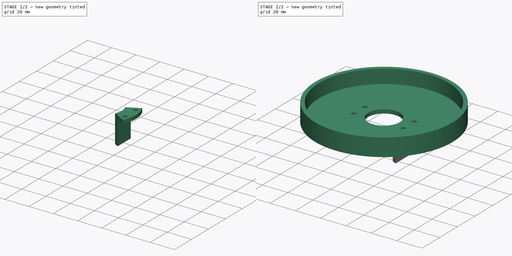
[diagram: build sequence overview — one tinted view per stage of 2, left to right]
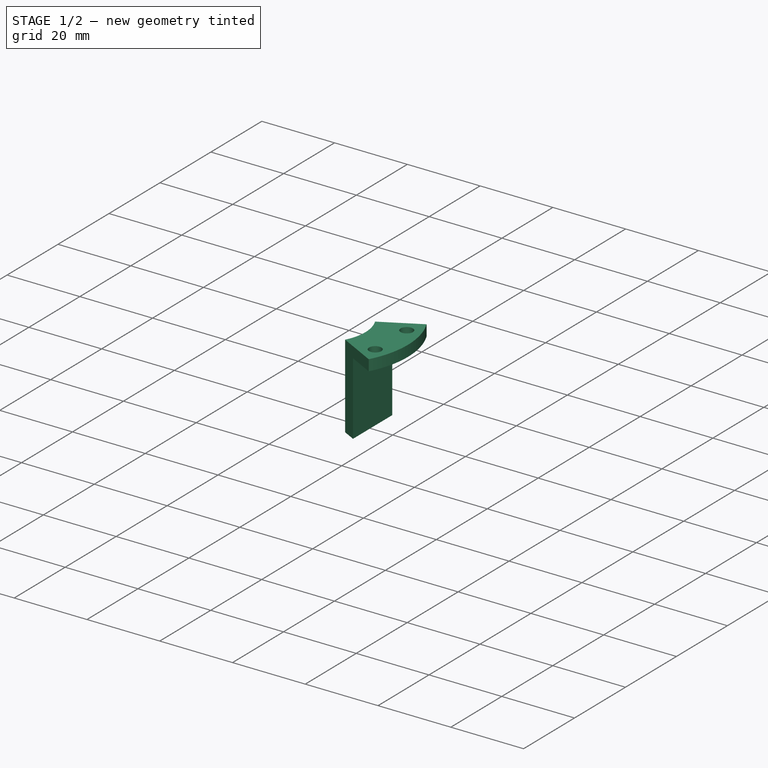
[diagram: stage 1 of 2 — iso view after this stage's code; geometry added in this stage tinted green]
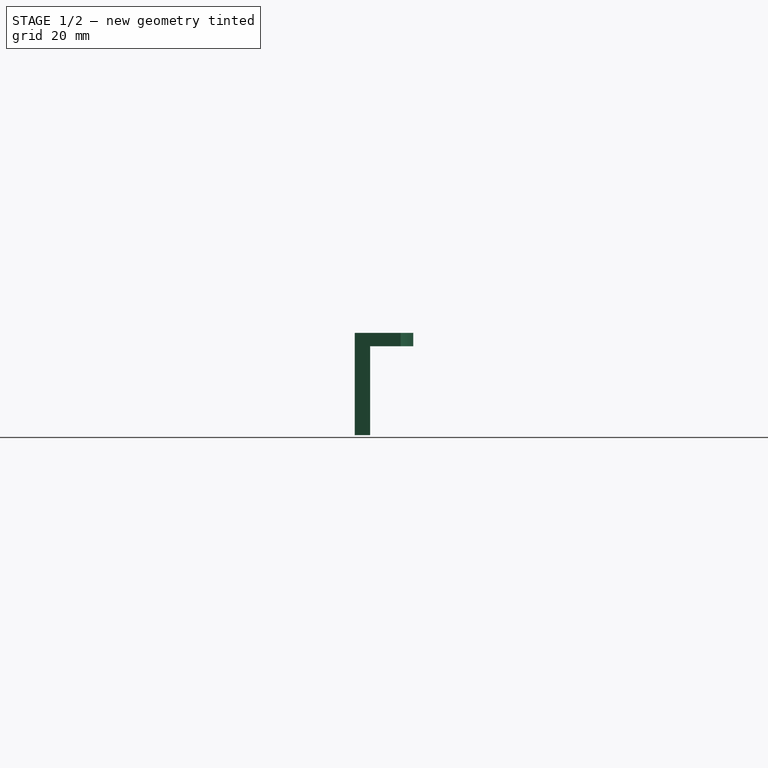
[diagram: stage 1 of 2 — front view after this stage's code; geometry added in this stage tinted green]
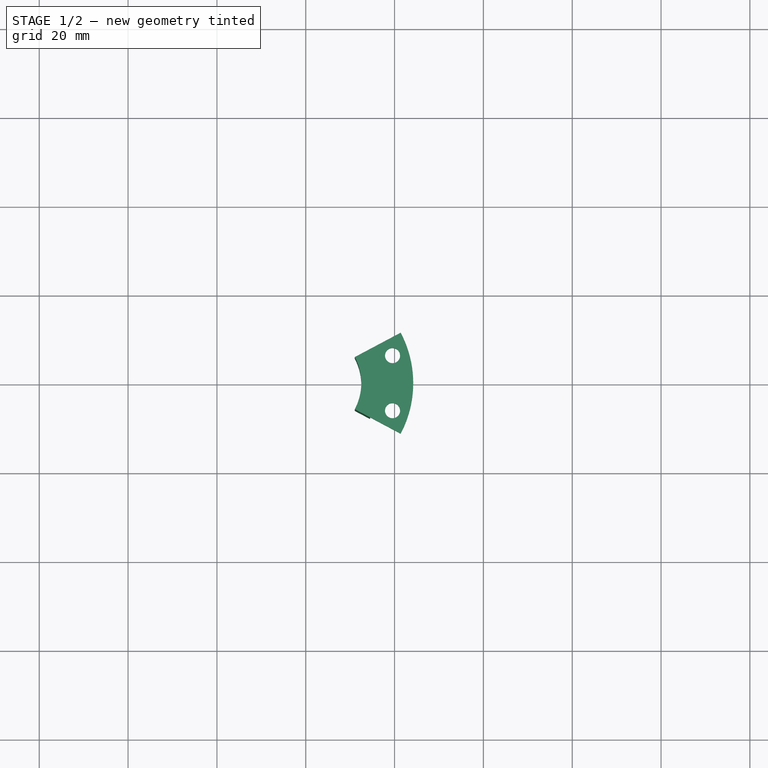
[diagram: stage 1 of 2 — top view after this stage's code; geometry added in this stage tinted green]
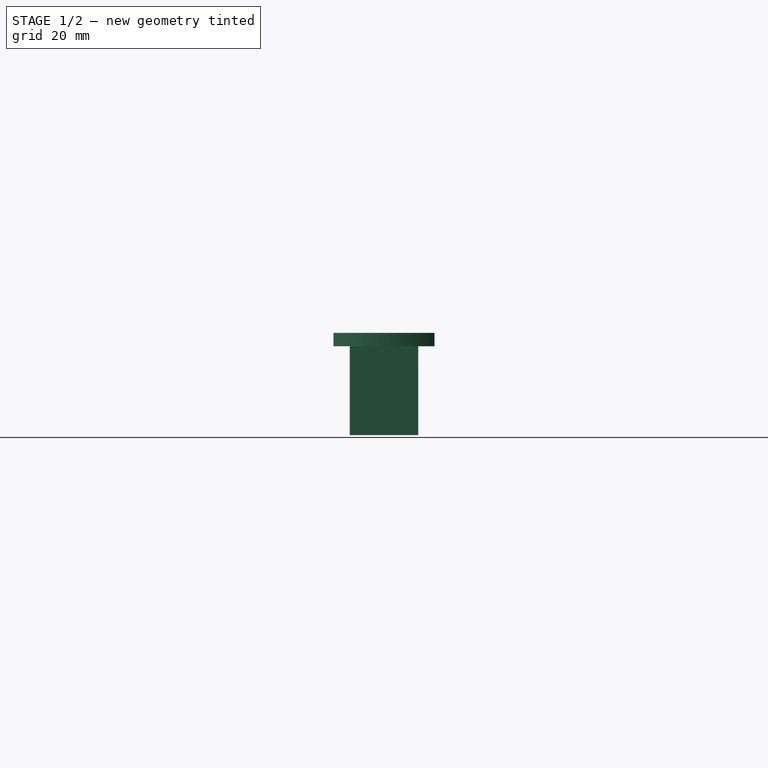
[diagram: stage 1 of 2 — right view after this stage's code; geometry added in this stage tinted green]
FCSTD DOCUMENT  (FreeCAD 0.18.4R)
Label: 16
License: All rights reserved
LicenseURL: http://en.wikipedia.org/wiki/All_rights_reserved
objects: Sketcher::SketchObject×5, PartDesign::Pocket×2, PartDesign::Body×2, PartDesign::Pad×2, PartDesign::Revolution×1, PartDesign::ShapeBinder×1
note: 18 computed .brp shape members not serialized (recipe doc carries the construction recipe); baked Part::Feature solids carry a one-line shape summary decoded from their .brp

FEATURE [PartDesign::Body] Body
  Group = -> [Sketch,Revolution,Sketch001,Pocket]
  Origin = -> Origin
  Tip = -> Pocket
FEATURE [PartDesign::ShapeBinder] ShapeBinder  label="Unnamed"
  TraceSupport = false
FEATURE [PartDesign::Pad] Pad  label="Unnamed"
  Length = 100
  Length2 = 100
  Type = 0
FEATURE [Sketcher::SketchObject] Sketch002  label="Sketch003"
  MapMode = 5
  Placement = pos=(0,0,-3) rot=(1,0,0;3.14159rad)
  Support = -> [Pad]
FEATURE [Sketcher::SketchObject] Sketch003  label="Unnamed"
FEATURE [PartDesign::Pad] Pad001
  BaseFeature = -> Pad
  Length = 20
  Length2 = 100
  Profile = -> Sketch003
  Type = 0
FEATURE [Sketcher::SketchObject] Sketch004  label="Unnamed"
  constraints (2):
    c: PointOnObject(g0,g-2)
    c: Diameter(g0) = 8.4
FEATURE [PartDesign::Pocket] Pocket001  label="Unnamed"
  Length = 100
  Length2 = 100
  Type = 0
FEATURE [PartDesign::Body] Body001
  Group = -> [Sketch002,ShapeBinder,Pad,Sketch003,Pad001,Sketch004,Pocket001]
  Origin = -> Origin001
  Tip = -> Pocket001
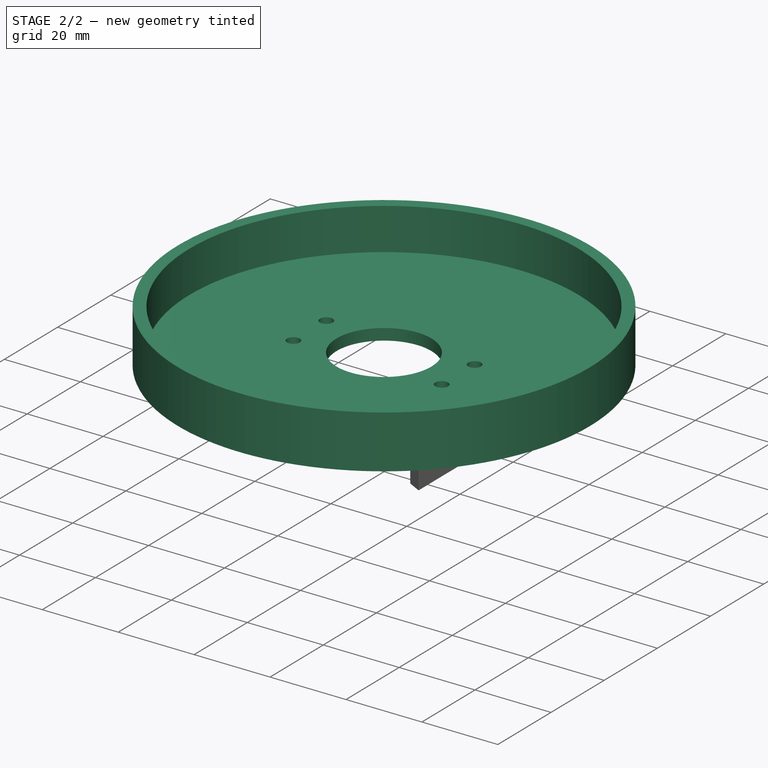
[diagram: stage 2 of 2 — iso view after this stage's code; geometry added in this stage tinted green]
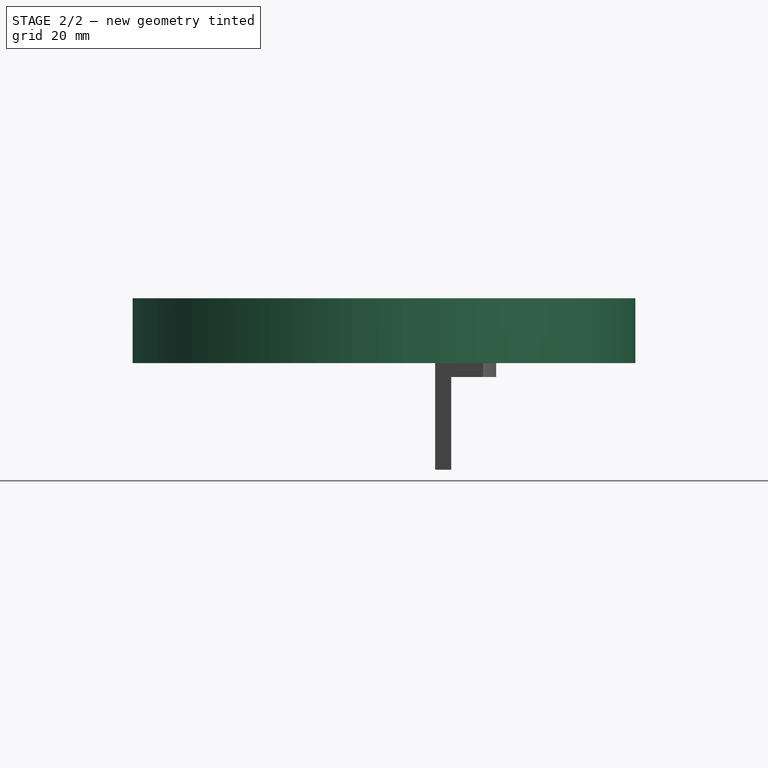
[diagram: stage 2 of 2 — front view after this stage's code; geometry added in this stage tinted green]
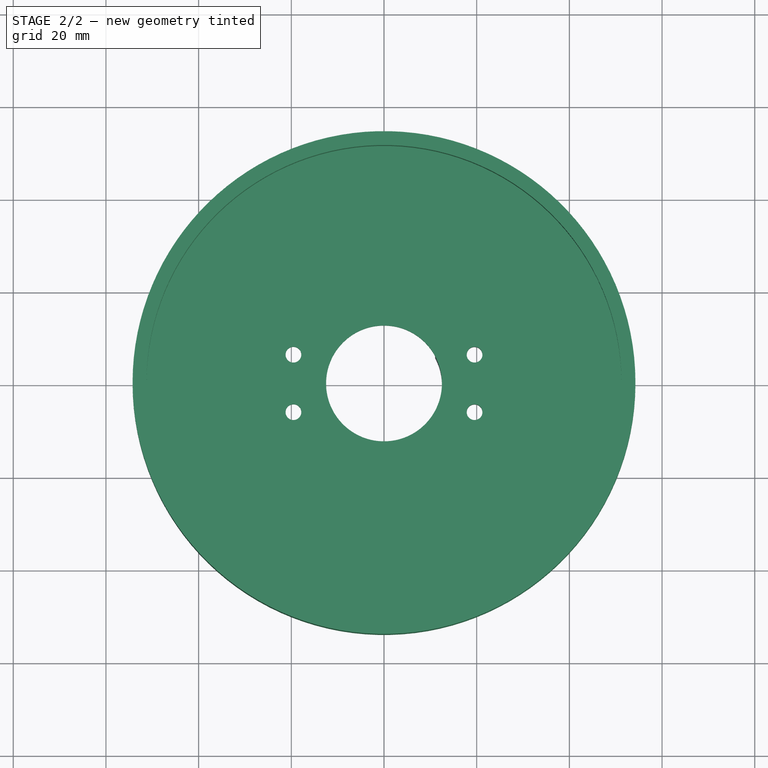
[diagram: stage 2 of 2 — top view after this stage's code; geometry added in this stage tinted green]
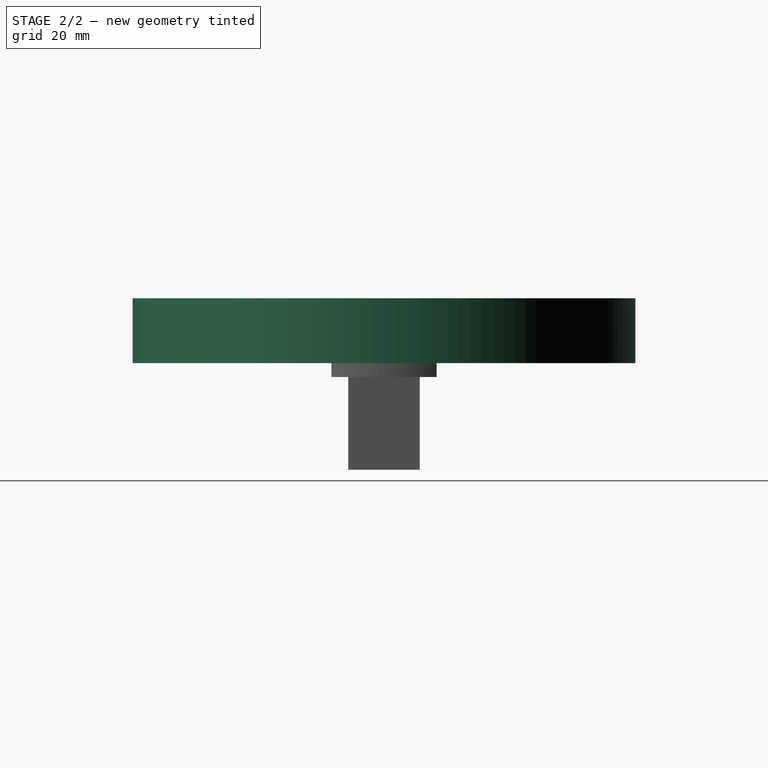
[diagram: stage 2 of 2 — right view after this stage's code; geometry added in this stage tinted green]
FEATURE [PartDesign::Revolution] Revolution  label="Unnamed"
  Angle = 360
  Axis = (0,1,0)
  Base = (0,0,0)
FEATURE [Sketcher::SketchObject] Sketch  label="Sketch001"
  MapMode = 5
  Placement = pos=(0,2e-15,3) rot=(0,0,1;3.14159rad)
  Support = -> [Revolution]
  sketch-geometry (6):
    g0: LineSegment StartX=12.5 StartY=3 StartZ=0 EndX=51.25 EndY=3 EndZ=0
    g1: LineSegment StartX=51.25 StartY=14 StartZ=0 EndX=54.25 EndY=14 EndZ=0
    g2: LineSegment StartX=54.25 StartY=0 StartZ=0 EndX=12.5 EndY=0 EndZ=0
    g3: Circle CenterX=19.54 CenterY=-6.19979 CenterZ=0 NormalX=0 NormalY=0 NormalZ=1 AngleXU=0 Radius=1.7
    g4: Circle CenterX=-19.54 CenterY=6.19979 CenterZ=0 NormalX=0 NormalY=0 NormalZ=1 AngleXU=0 Radius=1.7
    g5: LineSegment StartX=0 StartY=0 StartZ=0 EndX=-19.54 EndY=6.19979 EndZ=0
  constraints (18):
    c: PointOnObject(g0,g-1)
    c: Vertical(g0)
    c: Coincident(g0,g1)
    c: Horizontal(g1)
    c: Coincident(g1,g2)
    c: Vertical(g2)
    c: Coincident(g2,g3)
    c: Horizontal(g3)
    c: Coincident(g3,g4)
    c: Vertical(g4)
    c: PointOnObject(g5,g-1)
    c: Coincident(g5,g0)
    c: Coincident(g4,g5)
    c: Distance(g2,g-2) = 51.25
    c: Distance(g0,g-2) = 12.5
    c: Distance(g0) = 3
    c: Distance(g4) = 14
    c: Distance(g3) = 3
FEATURE [Sketcher::SketchObject] Sketch001  label="Unnamed"
FEATURE [PartDesign::Pocket] Pocket
  BaseFeature = -> Revolution
  Length = 5
  Length2 = 100
  Placement = pos=(0,0,0) rot=(1,0,0;1.5708rad)
  Profile = -> Sketch001
  Type = 0
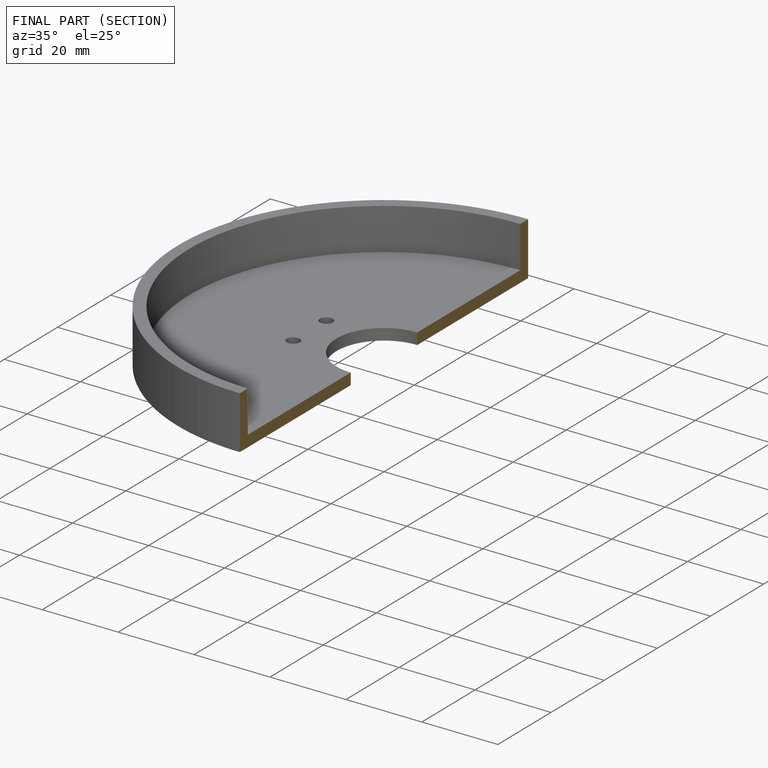
[diagram: finished part — half-section view (interior)]
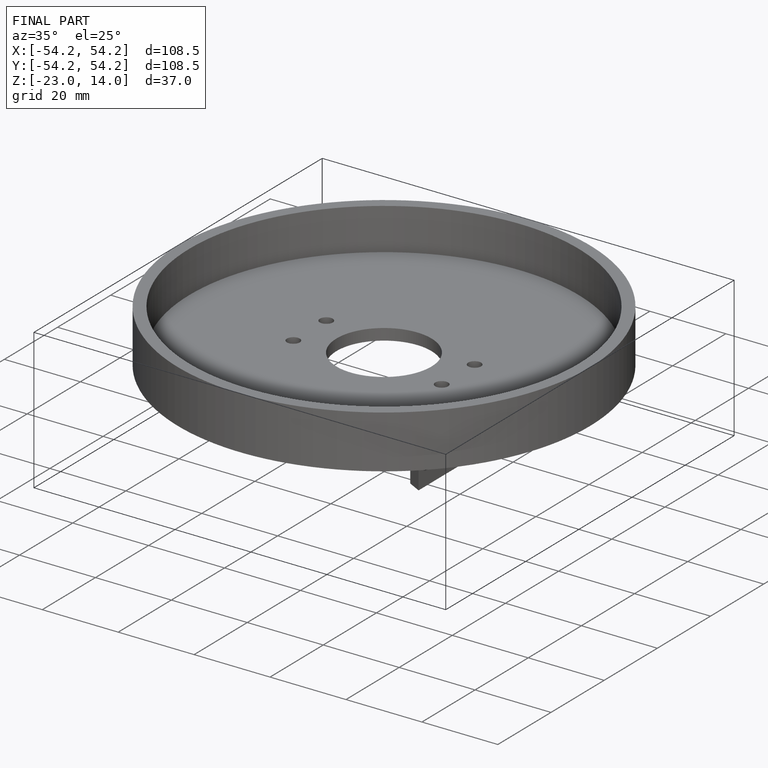
[diagram: finished part — iso view with bounding-box wireframe]
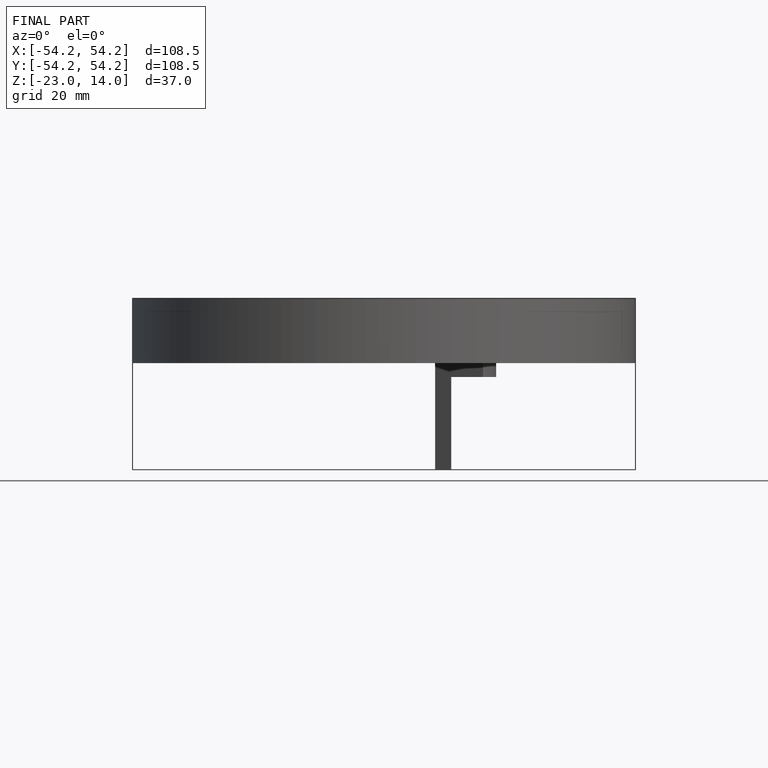
[diagram: finished part — front view with bounding-box wireframe]
